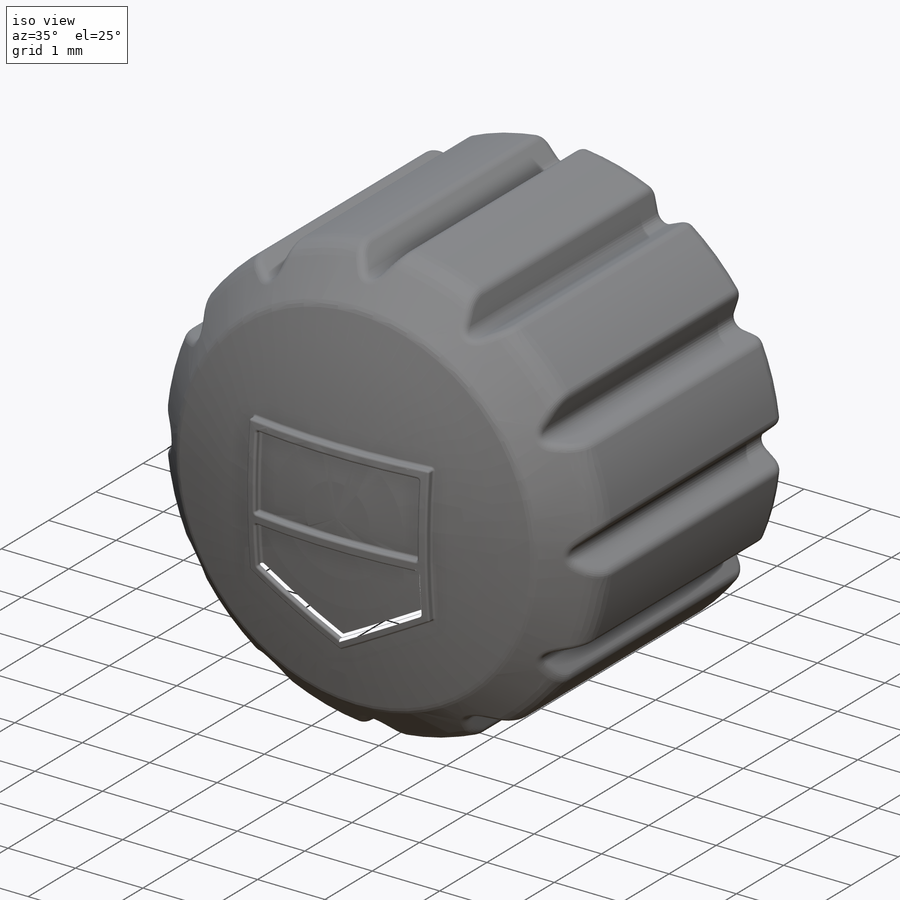
[diagram: iso view]
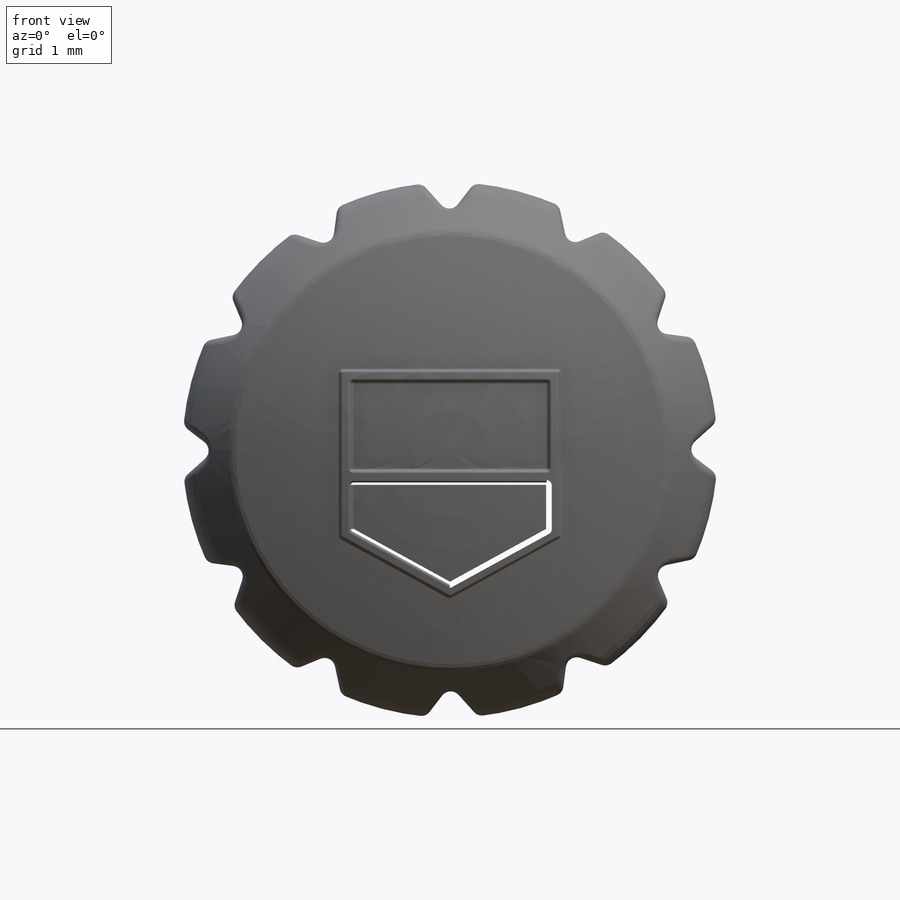
[diagram: front view]
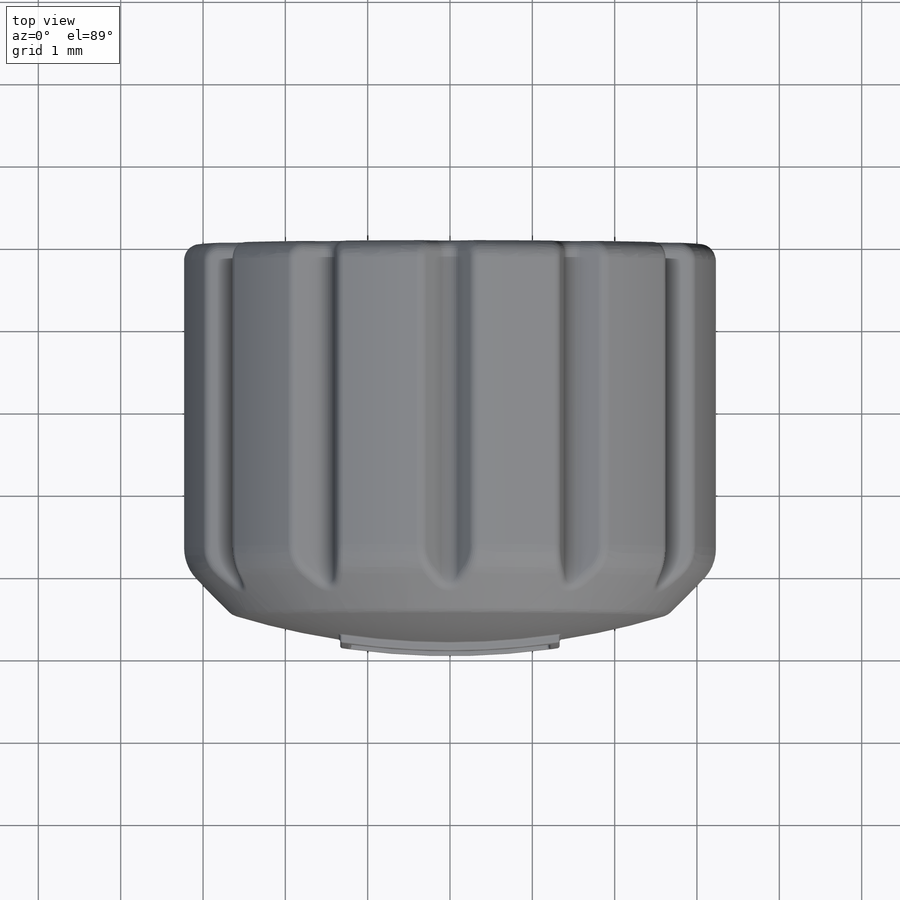
[diagram: top view]
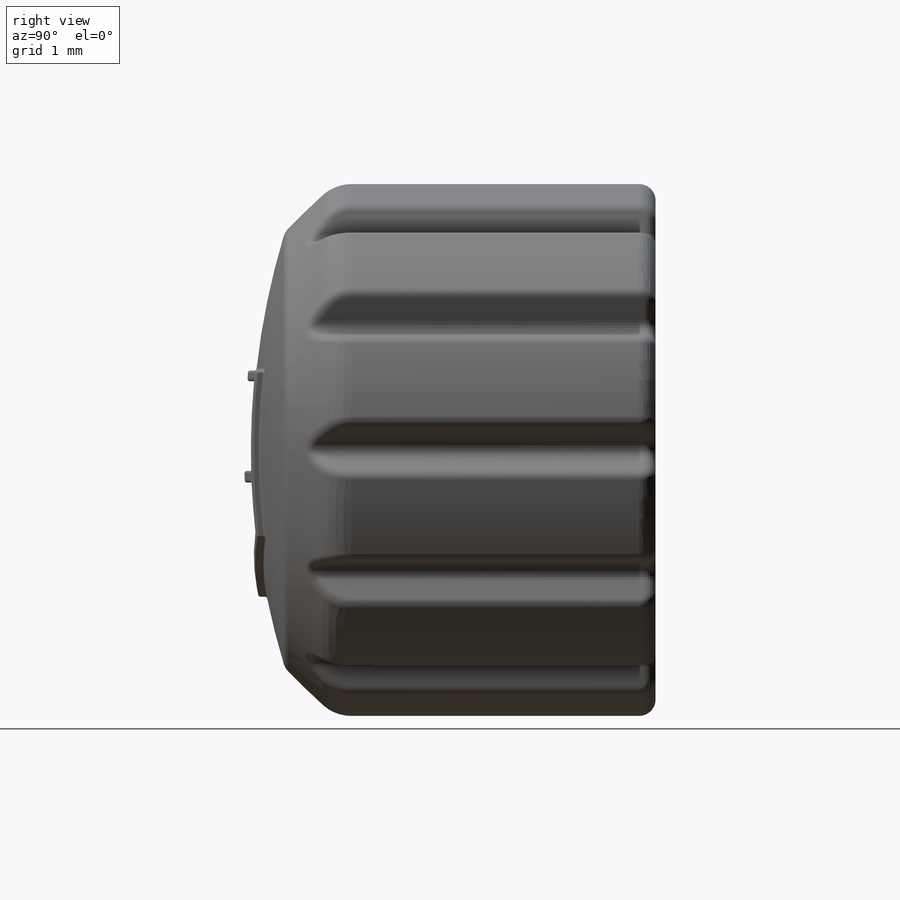
[diagram: right view]
SOLIDWORKS PART (.sldprt)
format: sldprt  version: not decoded by parser v0  size: 974,848 bytes
history: native  units: mm
features: fillet x4, sketch x3, extrude x2, material x1, chamfer x1, dome x1, cut_extrude x1, pattern_circular x1 (+11 scaffold rows collapsed)
feature tree (25):
  scaffold x11  (default folders/planes/origin — collapsed)
  material  "Material <not specified>"
  sketch  "Sketch1"  dims[D1=6.5mm]
  extrude  "Boss-Extrude1"  Depth=4.5mm
  chamfer  "Chamfer1"  Distance=0.6mm Angle=45deg
  dome  "Dome1"
  fillet  "Fillet1"  Radius=0.2mm
  fillet  "Fillet2"  Radius=0.5mm
  sketch  "Sketch2"
  cut_extrude  "Cut-Extrude1"  Depth=4.5mm
  fillet  "Fillet3"  Radius=0.13mm
  pattern_circular  "CirPattern1"  Count=12 Angle=30deg
  sketch  "Sketch3"
  extrude  "Boss-Extrude2"  Depth=0.1mm
  fillet  "Fillet4"  Radius=0.03mm
decode coverage: 10 of 13 modeling features carry decoded parameters
note: suppression state not decoded; provenance and decode notes live in map.json
